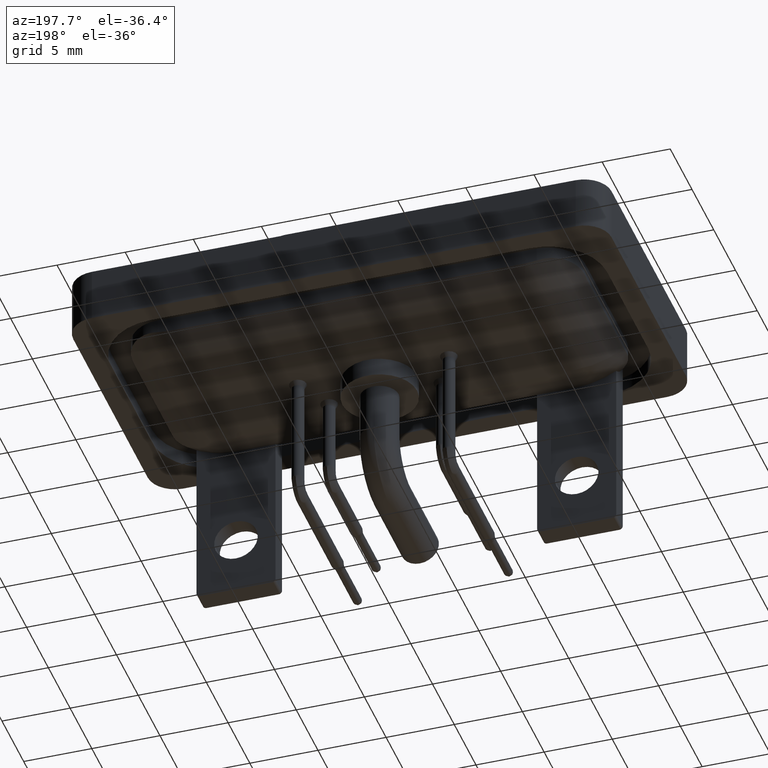
[diagram: clean part render]
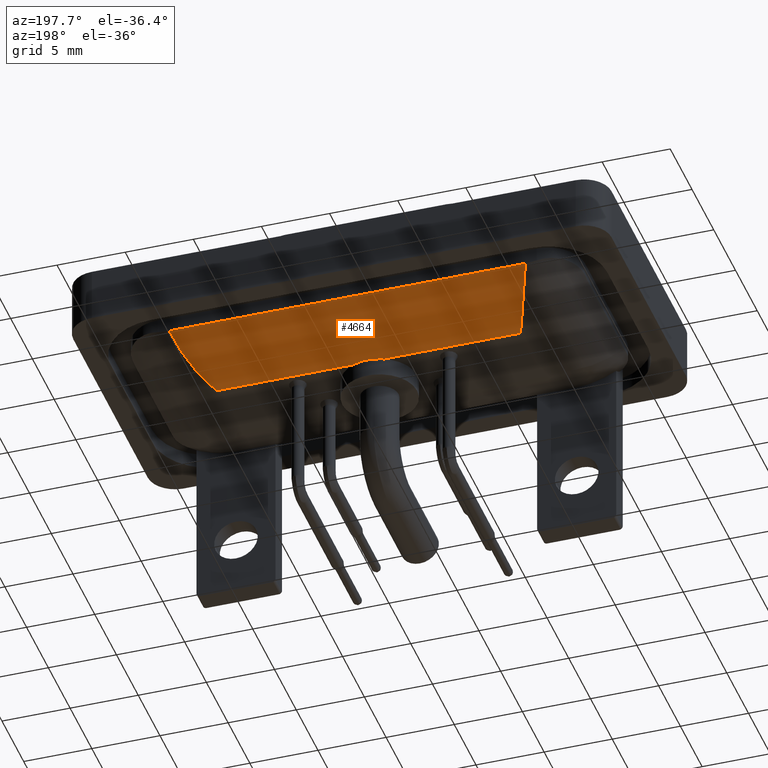
[diagram: same view with one face highlighted and labeled with its STEP entity id]
A machine part, auxiliary view. The second image highlights one B-rep face of the part: STEP entity #4664.
In plain terms, the highlighted cylindrical surface (partial cylindrical patch) has radius 6.75 mm, axis along (1, 0, 0).
Its self-contained STEP definition (entity closure, byte-faithful):
#497 = CARTESIAN_POINT ( 'NONE',  ( 25.43692072071337051, 7.127369173196590246, -3.946469644253888465 ) ) ;
#758 = EDGE_CURVE ( 'NONE', #2528, #11183, #1903, .T. ) ;
#777 = LINE ( 'NONE', #14920, #6149 ) ;
#1004 = DIRECTION ( 'NONE',  ( 1.000000000000000000, -0.000000000000000000, -0.000000000000000000 ) ) ;
#1200 = B_SPLINE_CURVE_WITH_KNOTS ( 'NONE', 3,
 ( #19565, #497, #13263, #19666, #20281, #13579, #13887, #7283, #9049, #10525, #5514, #18493 ),
 .UNSPECIFIED., .F., .F.,
 ( 4, 2, 2, 2, 2, 4 ),
 ( 1.226634733346699349E-18, 0.001467552359336094956, 0.002201328539004139724, 0.002935104718672185142, 0.004402657078008279448, 0.005870209437344373754 ),
 .UNSPECIFIED. ) ;
#1853 = VERTEX_POINT ( 'NONE', #13534 ) ;
#1881 = CARTESIAN_POINT ( 'NONE',  ( 0.1768743779762220469, 5.600172413203449828, -5.005634836073227234 ) ) ;
#1903 = B_SPLINE_CURVE_WITH_KNOTS ( 'NONE', 3,
 ( #9816, #8452, #11004, #12966, #7758, #15718, #1881, #6683, #19572, #14655, #6585, #6786 ),
 .UNSPECIFIED., .F., .F.,
 ( 4, 2, 2, 2, 2, 4 ),
 ( -1.693948756904110173E-05, 0.001458652958656941109, 0.002934245404882923017, 0.003672041627995913972, 0.004409837851108905360, 0.005885430297334891606 ),
 .UNSPECIFIED. ) ;
#2471 = FACE_OUTER_BOUND ( 'NONE', #5650, .T. ) ;
#2517 = ORIENTED_EDGE ( 'NONE', *, *, #4967, .T. ) ;
#2528 = VERTEX_POINT ( 'NONE', #14442 ) ;
#2792 = CARTESIAN_POINT ( 'NONE',  ( -7.249999999999999112, 2.510111337287045163, 1.000000000000000000 ) ) ;
#2902 = DIRECTION ( 'NONE',  ( 1.000000000000000000, -0.000000000000000000, -0.000000000000000000 ) ) ;
#3775 = CARTESIAN_POINT ( 'NONE',  ( -0.5757188939188411236, 7.450000000000001954, -3.600000000000000089 ) ) ;
#4650 = EDGE_CURVE ( 'NONE', #11183, #1853, #9043, .T. ) ;
#4664 = ADVANCED_FACE ( 'NONE', ( #2471 ), #20277, .T. ) ;
#4967 = EDGE_CURVE ( 'NONE', #15569, #2528, #777, .T. ) ;
#5514 = CARTESIAN_POINT ( 'NONE',  ( 23.81597260831431839, 2.967740677861630871, -5.750000000000002665 ) ) ;
#5650 = EDGE_LOOP ( 'NONE', ( #13580, #18183, #2517, #6445 ) ) ;
#6123 = DIRECTION ( 'NONE',  ( 0.000000000000000000, 0.000000000000000000, -1.000000000000000000 ) ) ;
#6149 = VECTOR ( 'NONE', #18061, 1000.000000000000000 ) ;
#6445 = ORIENTED_EDGE ( 'NONE', *, *, #758, .T. ) ;
#6585 = CARTESIAN_POINT ( 'NONE',  ( -0.4369229093462909108, 7.127374260586707422, -3.946464180962414581 ) ) ;
#6683 = CARTESIAN_POINT ( 'NONE',  ( 0.01767531945352314449, 6.004498999503240952, -4.779738930375764916 ) ) ;
#6786 = CARTESIAN_POINT ( 'NONE',  ( -0.5757188939188411236, 7.450000000000001954, -3.600000000000000089 ) ) ;
#6825 = EDGE_CURVE ( 'NONE', #1853, #15569, #1200, .T. ) ;
#7283 = CARTESIAN_POINT ( 'NONE',  ( 24.49887451761919976, 4.764784768806175741, -5.378692661874023173 ) ) ;
#7758 = CARTESIAN_POINT ( 'NONE',  ( 0.5011073156657230854, 4.764832012423006802, -5.378675463790601796 ) ) ;
#8140 = VECTOR ( 'NONE', #1004, 1000.000000000000000 ) ;
#8452 = CARTESIAN_POINT ( 'NONE',  ( 1.183080426524393935, 2.970247831803567884, -5.750000000000000888 ) ) ;
#9043 = LINE ( 'NONE', #10619, #8140 ) ;
#9049 = CARTESIAN_POINT ( 'NONE',  ( 24.33280731536807551, 4.330553919558025378, -5.516021481225744871 ) ) ;
#9816 = CARTESIAN_POINT ( 'NONE',  ( 1.356876395888036324, 2.510111337287044275, -5.750000000000003553 ) ) ;
#10525 = CARTESIAN_POINT ( 'NONE',  ( 23.99173230326593398, 3.433061810210239706, -5.702291366664957728 ) ) ;
#10619 = CARTESIAN_POINT ( 'NONE',  ( -7.249999999999999112, 7.450000000000001954, -3.600000000000000089 ) ) ;
#11004 = CARTESIAN_POINT ( 'NONE',  ( 1.008240378788553659, 3.433133957340478659, -5.702280902768365856 ) ) ;
#11183 = VERTEX_POINT ( 'NONE', #3775 ) ;
#11489 = AXIS2_PLACEMENT_3D ( 'NONE', #2792, #2902, #6123 ) ;
#12966 = CARTESIAN_POINT ( 'NONE',  ( 0.6671715985995865239, 4.330609140818737046, -5.516005509825794739 ) ) ;
#13263 = CARTESIAN_POINT ( 'NONE',  ( 25.29126519311446941, 6.774698732950262148, -4.252885576766403553 ) ) ;
#13534 = CARTESIAN_POINT ( 'NONE',  ( 25.57571889391887510, 7.450000000000001954, -3.600000000000000089 ) ) ;
#13579 = CARTESIAN_POINT ( 'NONE',  ( 24.82311299480917199, 5.600140165011685767, -5.005651561371217362 ) ) ;
#13580 = ORIENTED_EDGE ( 'NONE', *, *, #4650, .T. ) ;
#13887 = CARTESIAN_POINT ( 'NONE',  ( 24.74271638107006410, 5.394077345185136707, -5.107162447049307552 ) ) ;
#14442 = CARTESIAN_POINT ( 'NONE',  ( 1.356876395888036324, 2.510111337287044275, -5.750000000000003553 ) ) ;
#14655 = CARTESIAN_POINT ( 'NONE',  ( -0.2912697846406497870, 6.774709845367380190, -4.252875900503579665 ) ) ;
#14920 = CARTESIAN_POINT ( 'NONE',  ( -7.249999999999999112, 2.510111337287045163, -5.750000000000000888 ) ) ;
#15569 = VERTEX_POINT ( 'NONE', #19249 ) ;
#15718 = CARTESIAN_POINT ( 'NONE',  ( 0.2572696322444240069, 5.394113261146028293, -5.107145356219234600 ) ) ;
#18061 = DIRECTION ( 'NONE',  ( -1.000000000000000000, 0.000000000000000000, 0.000000000000000000 ) ) ;
#18183 = ORIENTED_EDGE ( 'NONE', *, *, #6825, .T. ) ;
#18493 = CARTESIAN_POINT ( 'NONE',  ( 23.64312360411197389, 2.510111337287045163, -5.750000000000000888 ) ) ;
#19249 = CARTESIAN_POINT ( 'NONE',  ( 23.64312360411197389, 2.510111337287045163, -5.750000000000000888 ) ) ;
#19565 = CARTESIAN_POINT ( 'NONE',  ( 25.57571889391887510, 7.450000000000001954, -3.600000000000000089 ) ) ;
#19572 = CARTESIAN_POINT ( 'NONE',  ( -0.06130717499785597047, 6.203188513436403539, -4.654903393189647964 ) ) ;
#19666 = CARTESIAN_POINT ( 'NONE',  ( 25.06129859211458211, 6.203167033158810462, -4.654917573373785089 ) ) ;
#20277 = CYLINDRICAL_SURFACE ( 'NONE', #11489, 6.750000000000000888 ) ;
#20281 = CARTESIAN_POINT ( 'NONE',  ( 24.98231471448329444, 6.004473866282021177, -4.779754263697179262 ) ) ;